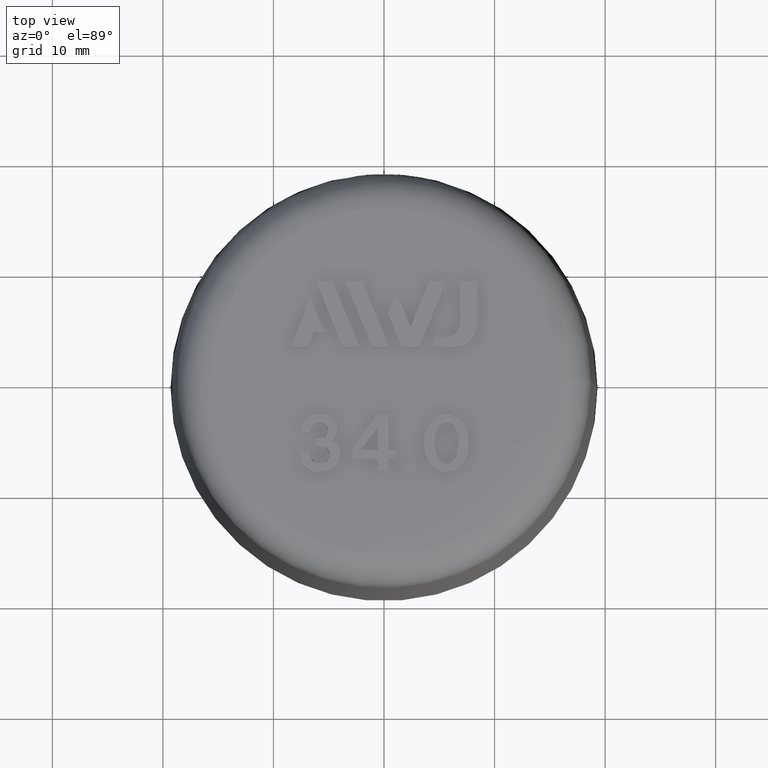
[diagram: clean part render]
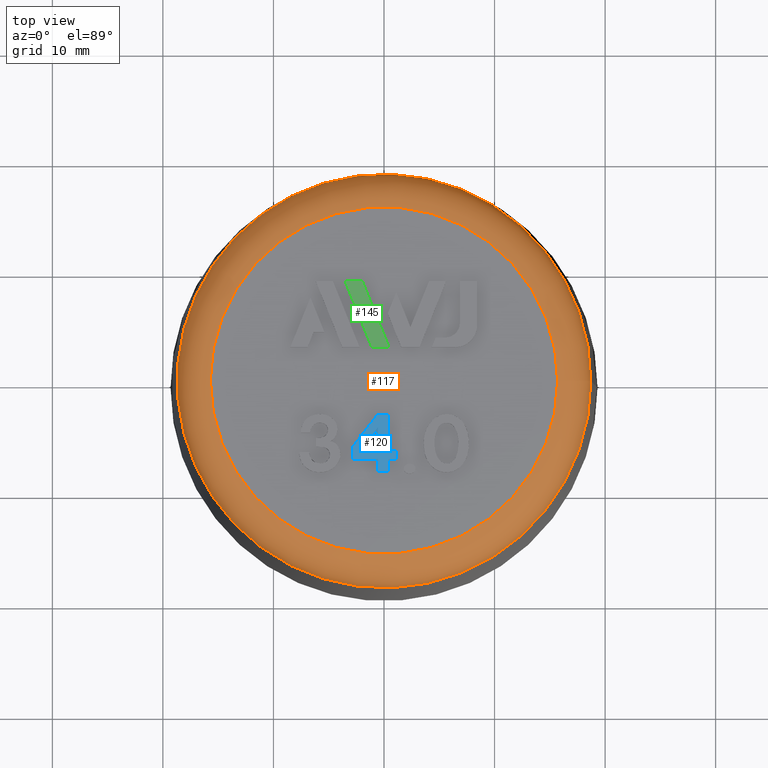
[diagram: same view with three faces highlighted in distinct colors, each labeled with its STEP entity id]
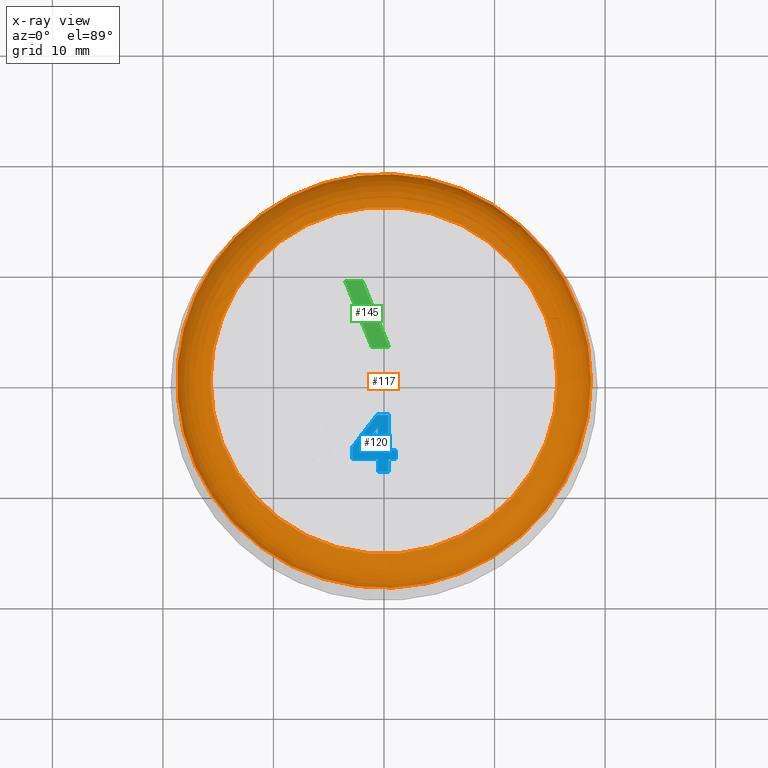
[diagram: x-ray of the same camera — body ghosted, the three highlighted faces saturated]
A machine part, top view with three faces highlighted in distinct colors.
The next image is the same camera in x-ray (body ghosted, the three faces saturated) — at least one of them is partly hidden behind the body in this view.
Their STEP definitions:

[orange] entity #117 — the highlighted toroidal blend (fillet) surface has major radius 15.7118 mm and minor (blend) radius 3 mm.
#117 = ADVANCED_FACE( '', ( #246, #247 ), #248, .T. );
#246 = FACE_OUTER_BOUND( '', #411, .T. );
#247 = FACE_OUTER_BOUND( '', #412, .T. );
#248 = TOROIDAL_SURFACE( '', #413, 15.7118391006405, 3.00000000000000 );
#411 = EDGE_LOOP( '', ( #853 ) );
#412 = EDGE_LOOP( '', ( #854 ) );
#413 = AXIS2_PLACEMENT_3D( '', #855, #856, #857 );
#853 = ORIENTED_EDGE( '', *, *, #1114, .F. );
#854 = ORIENTED_EDGE( '', *, *, #1226, .T. );
#855 = CARTESIAN_POINT( '', ( -2.08183080149804E-015, 0.000000000000000, 34.0000000000000 ) );
#856 = DIRECTION( '', ( -6.12303176911189E-017, 0.000000000000000, 1.00000000000000 ) );
#857 = DIRECTION( '', ( 1.00000000000000, 0.000000000000000, 6.12303176911189E-017 ) );
#1114 = EDGE_CURVE( '', #1296, #1296, #1297, .T. );
#1226 = EDGE_CURVE( '', #1488, #1488, #1489, .T. );
#1296 = VERTEX_POINT( '', #1643 );
#1297 = CIRCLE( '', #1644, 15.7118391006405 );
#1488 = VERTEX_POINT( '', #2064 );
#1489 = CIRCLE( '', #2065, 18.7113821861097 );
#1643 = CARTESIAN_POINT( '', ( 15.7118391006405, 0.000000000000000, 37.0000000000000 ) );
#1644 = AXIS2_PLACEMENT_3D( '', #2158, #2159, #2160 );
#2064 = CARTESIAN_POINT( '', ( 18.7113821861097, 0.000000000000000, 34.0523572193118 ) );
#2065 = AXIS2_PLACEMENT_3D( '', #2262, #2263, #2264 );
#2158 = CARTESIAN_POINT( '', ( -2.26552175457140E-015, 0.000000000000000, 37.0000000000000 ) );
#2159 = DIRECTION( '', ( -6.12303176911189E-017, 0.000000000000000, 1.00000000000000 ) );
#2160 = DIRECTION( '', ( 1.00000000000000, 0.000000000000000, 6.12303176911189E-017 ) );
#2262 = CARTESIAN_POINT( '', ( -2.08503665066993E-015, 0.000000000000000, 34.0523572193118 ) );
#2263 = DIRECTION( '', ( -6.12303176911189E-017, 0.000000000000000, 1.00000000000000 ) );
#2264 = DIRECTION( '', ( 1.00000000000000, 0.000000000000000, 6.12303176911189E-017 ) );

[blue] entity #120 — the highlighted planar face has unit normal (0, -0, -1).
#120 = ADVANCED_FACE( '', ( #253, #254 ), #255, .F. );
#253 = FACE_BOUND( '', #418, .T. );
#254 = FACE_OUTER_BOUND( '', #419, .T. );
#255 = PLANE( '', #420 );
#418 = EDGE_LOOP( '', ( #871, #872, #873 ) );
#419 = EDGE_LOOP( '', ( #874, #875, #876, #877, #878, #879, #880, #881, #882, #883, #884 ) );
#420 = AXIS2_PLACEMENT_3D( '', #885, #886, #887 );
#871 = ORIENTED_EDGE( '', *, *, #1171, .T. );
#872 = ORIENTED_EDGE( '', *, *, #1230, .T. );
#873 = ORIENTED_EDGE( '', *, *, #1231, .T. );
#874 = ORIENTED_EDGE( '', *, *, #1232, .T. );
#875 = ORIENTED_EDGE( '', *, *, #1233, .T. );
#876 = ORIENTED_EDGE( '', *, *, #1167, .T. );
#877 = ORIENTED_EDGE( '', *, *, #1234, .T. );
#878 = ORIENTED_EDGE( '', *, *, #1235, .T. );
#879 = ORIENTED_EDGE( '', *, *, #1236, .T. );
#880 = ORIENTED_EDGE( '', *, *, #1237, .T. );
#881 = ORIENTED_EDGE( '', *, *, #1238, .T. );
#882 = ORIENTED_EDGE( '', *, *, #1239, .T. );
#883 = ORIENTED_EDGE( '', *, *, #1240, .T. );
#884 = ORIENTED_EDGE( '', *, *, #1241, .T. );
#885 = CARTESIAN_POINT( '', ( -1.74585937500000, -4.59111025007733, 37.5000000000000 ) );
#886 = DIRECTION( '', ( 6.13614949308772E-017, -1.94293244496741E-019, -1.00000000000000 ) );
#887 = DIRECTION( '', ( 6.69494841509799E-017, 1.00000000000000, -1.94293244496737E-019 ) );
#1167 = EDGE_CURVE( '', #1399, #1397, #1400, .T. );
#1171 = EDGE_CURVE( '', #1407, #1405, #1408, .F. );
#1230 = EDGE_CURVE( '', #1405, #1493, #1495, .F. );
#1231 = EDGE_CURVE( '', #1493, #1407, #1496, .T. );
#1232 = EDGE_CURVE( '', #1497, #1498, #1499, .T. );
#1233 = EDGE_CURVE( '', #1498, #1399, #1500, .T. );
#1234 = EDGE_CURVE( '', #1397, #1501, #1502, .T. );
#1235 = EDGE_CURVE( '', #1501, #1503, #1504, .T. );
#1236 = EDGE_CURVE( '', #1503, #1505, #1506, .T. );
#1237 = EDGE_CURVE( '', #1505, #1507, #1508, .T. );
#1238 = EDGE_CURVE( '', #1507, #1509, #1510, .T. );
#1239 = EDGE_CURVE( '', #1509, #1511, #1512, .T. );
#1240 = EDGE_CURVE( '', #1511, #1513, #1514, .T. );
#1241 = EDGE_CURVE( '', #1513, #1497, #1515, .T. );
#1397 = VERTEX_POINT( '', #1915 );
#1399 = VERTEX_POINT( '', #1918 );
#1400 = B_SPLINE_CURVE_WITH_KNOTS( '', 2, ( #1919, #1920, #1921 ), .UNSPECIFIED., .F., .F., ( 3, 3 ), ( -11.0000000000000, -10.0000000000000 ), .UNSPECIFIED. );
#1405 = VERTEX_POINT( '', #1929 );
#1407 = VERTEX_POINT( '', #1932 );
#1408 = LINE( '', #1933, #1934 );
#1493 = VERTEX_POINT( '', #2073 );
#1495 = LINE( '', #2076, #2077 );
#1496 = LINE( '', #2078, #2079 );
#1497 = VERTEX_POINT( '', #2080 );
#1498 = VERTEX_POINT( '', #2081 );
#1499 = B_SPLINE_CURVE_WITH_KNOTS( '', 2, ( #2082, #2083, #2084 ), .UNSPECIFIED., .F., .F., ( 3, 3 ), ( -2.00000000000000, -1.00000000000000 ), .UNSPECIFIED. );
#1500 = B_SPLINE_CURVE_WITH_KNOTS( '', 2, ( #2085, #2086, #2087 ), .UNSPECIFIED., .F., .F., ( 3, 3 ), ( -1.00000000000000, 0.000000000000000 ), .UNSPECIFIED. );
#1501 = VERTEX_POINT( '', #2088 );
#1502 = B_SPLINE_CURVE_WITH_KNOTS( '', 2, ( #2089, #2090, #2091 ), .UNSPECIFIED., .F., .F., ( 3, 3 ), ( -10.0000000000000, -9.00000000000000 ), .UNSPECIFIED. );
#1503 = VERTEX_POINT( '', #2092 );
#1504 = B_SPLINE_CURVE_WITH_KNOTS( '', 2, ( #2093, #2094, #2095 ), .UNSPECIFIED., .F., .F., ( 3, 3 ), ( -9.00000000000000, -8.00000000000000 ), .UNSPECIFIED. );
#1505 = VERTEX_POINT( '', #2096 );
#1506 = B_SPLINE_CURVE_WITH_KNOTS( '', 2, ( #2097, #2098, #2099 ), .UNSPECIFIED., .F., .F., ( 3, 3 ), ( -8.00000000000000, -7.00000000000000 ), .UNSPECIFIED. );
#1507 = VERTEX_POINT( '', #2100 );
#1508 = B_SPLINE_CURVE_WITH_KNOTS( '', 2, ( #2101, #2102, #2103 ), .UNSPECIFIED., .F., .F., ( 3, 3 ), ( -7.00000000000000, -6.00000000000000 ), .UNSPECIFIED. );
#1509 = VERTEX_POINT( '', #2104 );
#1510 = B_SPLINE_CURVE_WITH_KNOTS( '', 2, ( #2105, #2106, #2107 ), .UNSPECIFIED., .F., .F., ( 3, 3 ), ( -6.00000000000000, -5.00000000000000 ), .UNSPECIFIED. );
#1511 = VERTEX_POINT( '', #2108 );
#1512 = B_SPLINE_CURVE_WITH_KNOTS( '', 2, ( #2109, #2110, #2111 ), .UNSPECIFIED., .F., .F., ( 3, 3 ), ( -5.00000000000000, -4.00000000000000 ), .UNSPECIFIED. );
#1513 = VERTEX_POINT( '', #2112 );
#1514 = B_SPLINE_CURVE_WITH_KNOTS( '', 2, ( #2113, #2114, #2115 ), .UNSPECIFIED., .F., .F., ( 3, 3 ), ( -4.00000000000000, -3.00000000000000 ), .UNSPECIFIED. );
#1515 = B_SPLINE_CURVE_WITH_KNOTS( '', 2, ( #2116, #2117, #2118 ), .UNSPECIFIED., .F., .F., ( 3, 3 ), ( -3.00000000000000, -2.00000000000000 ), .UNSPECIFIED. );
#1915 = CARTESIAN_POINT( '', ( -0.560859375000001, -7.14111025007733, 37.5000000000000 ) );
#1918 = CARTESIAN_POINT( '', ( -2.87085937500000, -7.14111025007733, 37.5000000000000 ) );
#1919 = CARTESIAN_POINT( '', ( -2.87085937500000, -7.14111025007733, 37.5000000000000 ) );
#1920 = CARTESIAN_POINT( '', ( -1.71585937500000, -7.14111025007733, 37.5000000000000 ) );
#1921 = CARTESIAN_POINT( '', ( -0.560859375000001, -7.14111025007733, 37.5000000000000 ) );
#1929 = CARTESIAN_POINT( '', ( -0.560859375000000, -6.31611025007733, 37.5000000000000 ) );
#1932 = CARTESIAN_POINT( '', ( -0.560859375000000, -4.26611025007733, 37.5000000000000 ) );
#1933 = CARTESIAN_POINT( '', ( -0.560859375000000, -4.59111025007733, 37.5000000000000 ) );
#1934 = VECTOR( '', #2199, 1000.00000000000 );
#2073 = CARTESIAN_POINT( '', ( -2.12085937500000, -6.31611025007733, 37.5000000000000 ) );
#2076 = CARTESIAN_POINT( '', ( -1.74585937500000, -6.31611025007733, 37.5000000000000 ) );
#2077 = VECTOR( '', #2266, 1000.00000000000 );
#2078 = CARTESIAN_POINT( '', ( -2.12085937500000, -6.31611025007733, 37.5000000000000 ) );
#2079 = VECTOR( '', #2267, 1000.00000000000 );
#2080 = CARTESIAN_POINT( '', ( -0.620859375000000, -3.11611025007733, 37.5000000000000 ) );
#2081 = CARTESIAN_POINT( '', ( -2.87085937500000, -6.06611025007733, 37.5000000000000 ) );
#2082 = CARTESIAN_POINT( '', ( -0.620859375000000, -3.11611025007733, 37.5000000000000 ) );
#2083 = CARTESIAN_POINT( '', ( -1.74585937500000, -4.59111025007733, 37.5000000000000 ) );
#2084 = CARTESIAN_POINT( '', ( -2.87085937500000, -6.06611025007733, 37.5000000000000 ) );
#2085 = CARTESIAN_POINT( '', ( -2.87085937500000, -6.06611025007733, 37.5000000000000 ) );
#2086 = CARTESIAN_POINT( '', ( -2.87085937500000, -6.60361025007733, 37.5000000000000 ) );
#2087 = CARTESIAN_POINT( '', ( -2.87085937500000, -7.14111025007733, 37.5000000000000 ) );
#2088 = CARTESIAN_POINT( '', ( -0.560859375000001, -8.26611025007733, 37.5000000000000 ) );
#2089 = CARTESIAN_POINT( '', ( -0.560859375000001, -7.14111025007733, 37.5000000000000 ) );
#2090 = CARTESIAN_POINT( '', ( -0.560859375000001, -7.70361025007733, 37.5000000000000 ) );
#2091 = CARTESIAN_POINT( '', ( -0.560859375000001, -8.26611025007733, 37.5000000000000 ) );
#2092 = CARTESIAN_POINT( '', ( 0.399140625000000, -8.26611025007733, 37.5000000000000 ) );
#2093 = CARTESIAN_POINT( '', ( -0.560859375000001, -8.26611025007733, 37.5000000000000 ) );
#2094 = CARTESIAN_POINT( '', ( -0.0808593749999995, -8.26611025007733, 37.5000000000000 ) );
#2095 = CARTESIAN_POINT( '', ( 0.399140625000000, -8.26611025007733, 37.5000000000000 ) );
#2096 = CARTESIAN_POINT( '', ( 0.399140625000000, -7.14111025007733, 37.5000000000000 ) );
#2097 = CARTESIAN_POINT( '', ( 0.399140625000000, -8.26611025007733, 37.5000000000000 ) );
#2098 = CARTESIAN_POINT( '', ( 0.399140625000000, -7.70361025007733, 37.5000000000000 ) );
#2099 = CARTESIAN_POINT( '', ( 0.399140625000000, -7.14111025007733, 37.5000000000000 ) );
#2100 = CARTESIAN_POINT( '', ( 1.08914062500000, -7.14111025007733, 37.5000000000000 ) );
#2101 = CARTESIAN_POINT( '', ( 0.399140625000000, -7.14111025007733, 37.5000000000000 ) );
#2102 = CARTESIAN_POINT( '', ( 0.744140625000000, -7.14111025007733, 37.5000000000000 ) );
#2103 = CARTESIAN_POINT( '', ( 1.08914062500000, -7.14111025007733, 37.5000000000000 ) );
#2104 = CARTESIAN_POINT( '', ( 1.08914062500000, -6.34111025007733, 37.5000000000000 ) );
#2105 = CARTESIAN_POINT( '', ( 1.08914062500000, -7.14111025007733, 37.5000000000000 ) );
#2106 = CARTESIAN_POINT( '', ( 1.08914062500000, -6.74111025007733, 37.5000000000000 ) );
#2107 = CARTESIAN_POINT( '', ( 1.08914062500000, -6.34111025007733, 37.5000000000000 ) );
#2108 = CARTESIAN_POINT( '', ( 0.399140625000000, -6.34111025007733, 37.5000000000000 ) );
#2109 = CARTESIAN_POINT( '', ( 1.08914062500000, -6.34111025007733, 37.5000000000000 ) );
#2110 = CARTESIAN_POINT( '', ( 0.744140625000000, -6.34111025007733, 37.5000000000000 ) );
#2111 = CARTESIAN_POINT( '', ( 0.399140625000000, -6.34111025007733, 37.5000000000000 ) );
#2112 = CARTESIAN_POINT( '', ( 0.399140625000000, -3.11611025007733, 37.5000000000000 ) );
#2113 = CARTESIAN_POINT( '', ( 0.399140625000000, -6.34111025007733, 37.5000000000000 ) );
#2114 = CARTESIAN_POINT( '', ( 0.399140625000000, -4.72861025007733, 37.5000000000000 ) );
#2115 = CARTESIAN_POINT( '', ( 0.399140625000000, -3.11611025007733, 37.5000000000000 ) );
#2116 = CARTESIAN_POINT( '', ( 0.399140625000000, -3.11611025007733, 37.5000000000000 ) );
#2117 = CARTESIAN_POINT( '', ( -0.110859374999998, -3.11611025007733, 37.5000000000000 ) );
#2118 = CARTESIAN_POINT( '', ( -0.620859375000000, -3.11611025007733, 37.5000000000000 ) );
#2199 = DIRECTION( '', ( 6.69494841509799E-017, 1.00000000000000, -1.94293244496737E-019 ) );
#2266 = DIRECTION( '', ( 1.00000000000000, -6.69494841509799E-017, 6.13614949308772E-017 ) );
#2267 = DIRECTION( '', ( 0.605575278309935, 0.795788025984209, 3.70795666768050E-017 ) );

[green] entity #145 — the highlighted planar face has unit normal (0, 0, -1).
#145 = ADVANCED_FACE( '', ( #306 ), #307, .F. );
#306 = FACE_OUTER_BOUND( '', #475, .T. );
#307 = PLANE( '', #476 );
#475 = EDGE_LOOP( '', ( #1087, #1088, #1089, #1090 ) );
#476 = AXIS2_PLACEMENT_3D( '', #1091, #1092, #1093 );
#1087 = ORIENTED_EDGE( '', *, *, #1187, .T. );
#1088 = ORIENTED_EDGE( '', *, *, #1193, .T. );
#1089 = ORIENTED_EDGE( '', *, *, #1191, .T. );
#1090 = ORIENTED_EDGE( '', *, *, #1189, .T. );
#1091 = CARTESIAN_POINT( '', ( -1.09588833700001, 2.99488974992267, 37.5000000000000 ) );
#1092 = DIRECTION( '', ( 1.83690953073357E-016, 3.60642679026394E-033, -1.00000000000000 ) );
#1093 = DIRECTION( '', ( 1.00000000000000, -6.69494841509799E-017, 1.83690953073357E-016 ) );
#1187 = EDGE_CURVE( '', #1429, #1427, #1430, .T. );
#1189 = EDGE_CURVE( '', #1432, #1429, #1433, .T. );
#1191 = EDGE_CURVE( '', #1435, #1432, #1436, .T. );
#1193 = EDGE_CURVE( '', #1427, #1435, #1438, .T. );
#1427 = VERTEX_POINT( '', #1967 );
#1429 = VERTEX_POINT( '', #1970 );
#1430 = LINE( '', #1971, #1972 );
#1432 = VERTEX_POINT( '', #1975 );
#1433 = LINE( '', #1976, #1977 );
#1435 = VERTEX_POINT( '', #1980 );
#1436 = LINE( '', #1981, #1982 );
#1438 = LINE( '', #1985, #1986 );
#1967 = CARTESIAN_POINT( '', ( 0.454192982999998, 2.99488974992267, 37.5000000000000 ) );
#1970 = CARTESIAN_POINT( '', ( -1.09588833700001, 2.99488974992267, 37.5000000000000 ) );
#1971 = CARTESIAN_POINT( '', ( -1.09588833700001, 2.99488974992267, 37.5000000000000 ) );
#1972 = VECTOR( '', #2215, 1000.00000000000 );
#1975 = CARTESIAN_POINT( '', ( -3.51974232500000, 8.99349822192268, 37.5000000000000 ) );
#1976 = CARTESIAN_POINT( '', ( -3.51974232500000, 8.99349822192268, 37.5000000000000 ) );
#1977 = VECTOR( '', #2217, 1000.00000000000 );
#1980 = CARTESIAN_POINT( '', ( -1.96966167200000, 8.99349822192268, 37.5000000000000 ) );
#1981 = CARTESIAN_POINT( '', ( -1.96966167200001, 8.99349822192268, 37.5000000000000 ) );
#1982 = VECTOR( '', #2219, 1000.00000000000 );
#1985 = CARTESIAN_POINT( '', ( 0.454192982999998, 2.99488974992267, 37.5000000000000 ) );
#1986 = VECTOR( '', #2221, 1000.00000000000 );
#2215 = DIRECTION( '', ( 1.00000000000000, -6.12303176911189E-017, 1.83690953073357E-016 ) );
#2217 = DIRECTION( '', ( 0.374640987210496, -0.927169957829710, 6.88181600010391E-017 ) );
#2219 = DIRECTION( '', ( -1.00000000000000, 6.12303176911187E-017, -1.83690953073357E-016 ) );
#2221 = DIRECTION( '', ( -0.374641075834904, 0.927169922019295, -6.88181762805413E-017 ) );